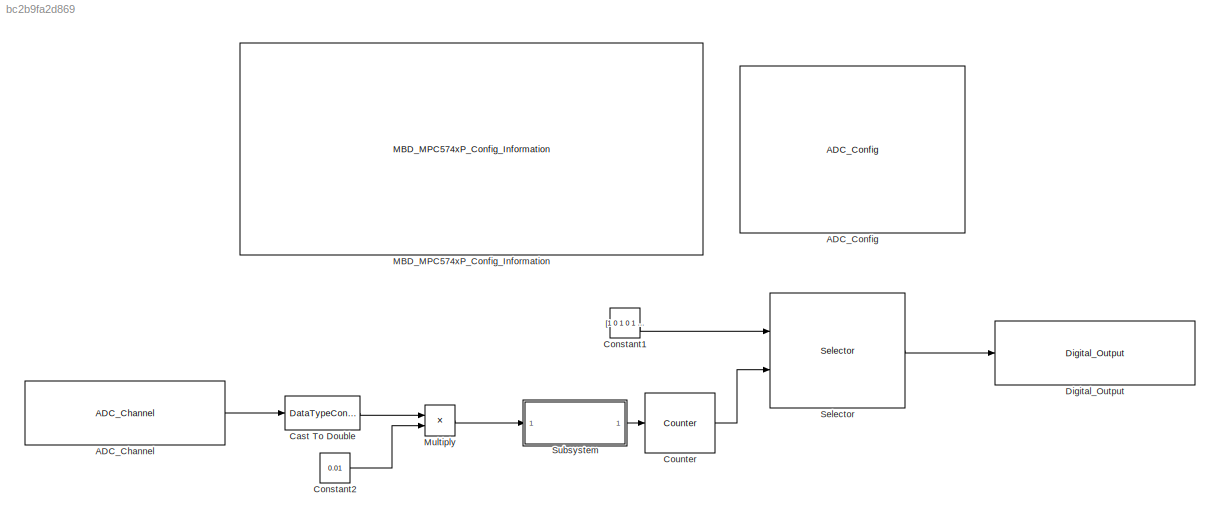
MODEL slx_bc2b9fa2d869
KIND model
CONFIG AbsTol = auto
CONFIG EnableMultiTasking = off
CONFIG FixedStep = 1e-5
CONFIG InitFcn = mbd_pnt_consistency_checks(bdroot(gcs));
CONFIG MaxStep = auto
CONFIG MinStep = auto
CONFIG RelTol = 1e-3
CONFIG SampleTimeConstraint = Unconstrained
CONFIG Solver = FixedStepDiscrete
CONFIG SolverName = FixedStepDiscrete
CONFIG StartTime = 0.0
CONFIG StopTime = 5
BLOCK [Reference] ADC_Channel  REF=mbd_pnt_ec_toolbox/MPC574xP/Motor Control Blocks/ADC_Channel
  Ports = [0, 1]
  SourceBlock = mbd_pnt_ec_toolbox/MPC574xP/Motor Control Blocks/ADC_Channel
  SourceProductName = Model Based Design Toolbox for MPC574xP
  SourceType = adc_pnt_channel_block
BLOCK [Reference] ADC_Config  REF=mbd_pnt_ec_toolbox/MPC574xP/Motor Control Blocks/ADC_Config
  Ports = []
  SourceBlock = mbd_pnt_ec_toolbox/MPC574xP/Motor Control Blocks/ADC_Config
  SourceProductName = Model Based Design Toolbox for MPC574xP
  SourceType = adc_pnt_config_block
BLOCK [DataTypeConversion] Cast To Double
  OutDataTypeStr = double
  RndMeth = Floor
  SaturateOnIntegerOverflow = off
BLOCK [Constant] Constant1
  OutDataTypeStr = boolean
  Value = [1 0 1 0 1 0 1 0 1 0 1 0 1 0 1 0 1 0 1 0 1 0 1 0 1 0 1 0 1 0 0 0]
BLOCK [Constant] Constant2
  Value = 0.01
BLOCK [Reference] Counter  REF=dspswit3/Counter
  Ports = [1, 1]
  SourceBlock = dspswit3/Counter
  SourceProductBaseCode = DS
  SourceProductName = DSP System Toolbox
  SourceType = Counter
BLOCK [Reference] Digital_Output  REF=mbd_pnt_ec_toolbox/MPC574xP/Peripheral Interface Blocks/Digital_Output
  Ports = [1]
  SourceBlock = mbd_pnt_ec_toolbox/MPC574xP/Peripheral Interface Blocks/Digital_Output
  SourceProductName = Model Based Design Toolbox for MPC574xP
  SourceType = GPIO_PNT_Output
BLOCK [Reference] MBD_MPC574xP_Config_Information  REF=mbd_pnt_ec_toolbox/MPC574xP/MBD_MPC574xP_Config_Information
  Ports = []
  SourceBlock = mbd_pnt_ec_toolbox/MPC574xP/MBD_MPC574xP_Config_Information
  SourceProductName = Model Based Design Toolbox for MPC574xP
  SourceType = MBDTBX_EC_PNT
BLOCK [Product] Multiply
  InputSameDT = off
  OutDataTypeStr = Inherit: Inherit via internal rule
  Ports = [2, 1]
  RndMeth = Floor
  SaturateOnIntegerOverflow = off
BLOCK [Selector] Selector
  IndexMode = Zero-based
  IndexOptions = Index vector (port)
  Indices = [1 3]
  InputPortWidth = 32
  OutputSizes = 1
  Ports = [2, 1]
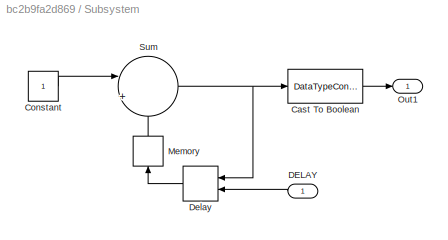
BLOCK [SubSystem] Subsystem
  Ports = [1, 1]
  RequestExecContextInheritance = off
BLOCK [DataTypeConversion] Subsystem/Cast To Boolean
  OutDataTypeStr = boolean
  RndMeth = Floor
  SaturateOnIntegerOverflow = off
BLOCK [Constant] Subsystem/Constant
  OutDataTypeStr = double
BLOCK [Inport] Subsystem/DELAY
  IconDisplay = Port number
BLOCK [Delay] Subsystem/Delay
  DelayLengthSource = Input port
  InputPortMap = u0,p1
  Ports = [2, 1]
BLOCK [Memory] Subsystem/Memory
BLOCK [Outport] Subsystem/Out1
  IconDisplay = Port number
BLOCK [Sum] Subsystem/Sum
  IconShape = round
  InputSameDT = off
  Inputs = |+-
  OutDataTypeStr = double
  Ports = [2, 1]
  SaturateOnIntegerOverflow = off
LINE ADC_Channel:1 -> Cast To Double:1
LINE Cast To Double:1 -> Multiply:1
LINE Constant1:1 -> Selector:1
LINE Constant2:1 -> Multiply:2
LINE Counter:1 -> Selector:2
LINE Multiply:1 -> Subsystem:1
LINE Selector:1 -> Digital_Output:1
LINE Subsystem/Cast To Boolean:1 -> Subsystem/Out1:1
LINE Subsystem/Constant:1 -> Subsystem/Sum:1
LINE Subsystem/DELAY:1 -> Subsystem/Delay:2
LINE Subsystem/Delay:1 -> Subsystem/Memory:1
LINE Subsystem/Memory:1 -> Subsystem/Sum:2
NET Subsystem/Sum:1 -> Subsystem/Cast To Boolean:1, Subsystem/Delay:1
LINE Subsystem:1 -> Counter:1
note: NET lines group one-source signal fan-out (src -> all destinations, sorted); 1:1 wires keep LINE
